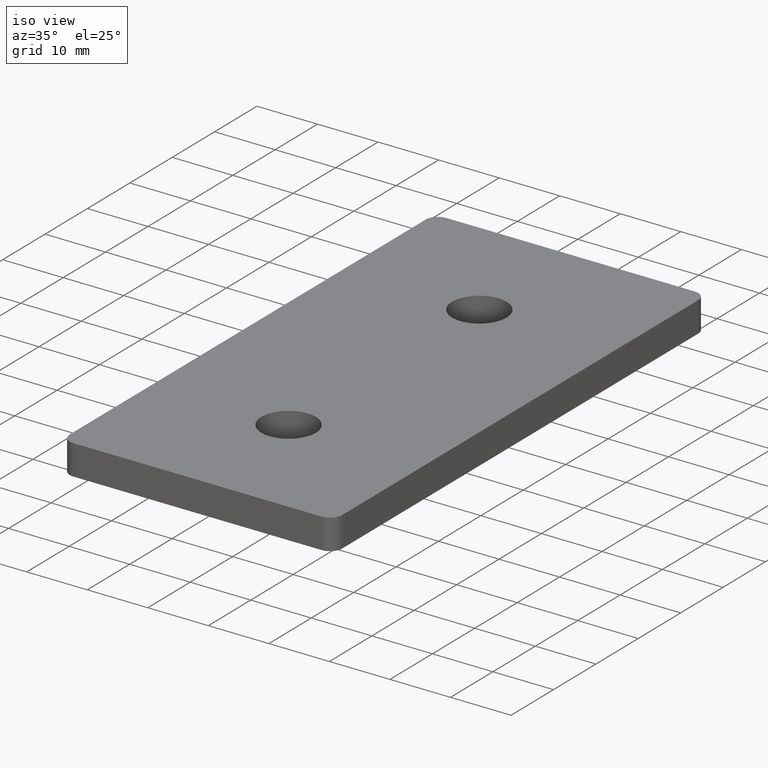
[diagram: clean part render]
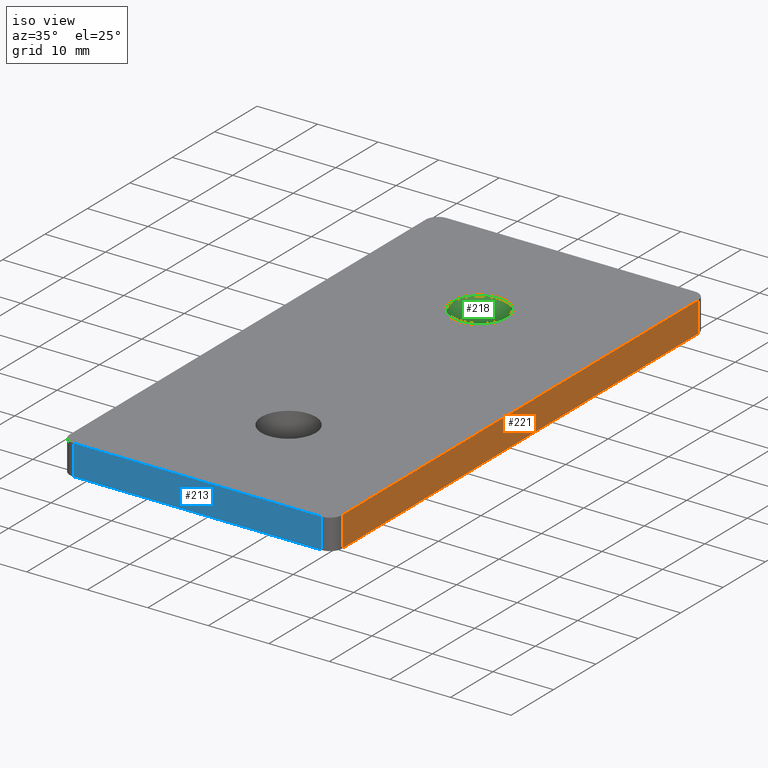
[diagram: same view with three faces highlighted in distinct colors, each labeled with its STEP entity id]
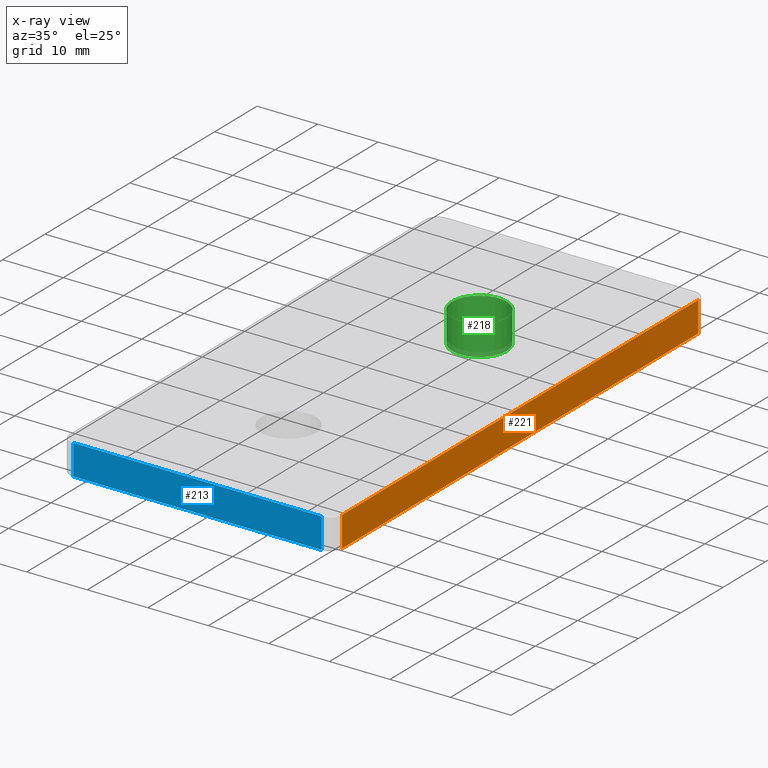
[diagram: x-ray of the same camera — body ghosted, the three highlighted faces saturated]
A machine part, iso view with three faces highlighted in distinct colors.
The next image is the same camera in x-ray (body ghosted, the three faces saturated) — at least one of them is partly hidden behind the body in this view.
Their STEP definitions:

[orange] entity #221 — the highlighted planar face has unit normal (1, 0, 0).
#25=PLANE('',#247);
#37=FACE_OUTER_BOUND('',#53,.T.);
#53=EDGE_LOOP('',(#191,#192,#193,#194));
#58=LINE('',#324,#74);
#62=LINE('',#338,#78);
#66=LINE('',#355,#82);
#72=LINE('',#374,#88);
#74=VECTOR('',#258,5.);
#78=VECTOR('',#270,84.);
#82=VECTOR('',#288,5.);
#88=VECTOR('',#312,84.);
#101=VERTEX_POINT('',#317);
#104=VERTEX_POINT('',#322);
#110=VERTEX_POINT('',#336);
#116=VERTEX_POINT('',#353);
#124=EDGE_CURVE('',#104,#101,#58,.T.);
#131=EDGE_CURVE('',#110,#104,#62,.T.);
#139=EDGE_CURVE('',#116,#110,#66,.T.);
#148=EDGE_CURVE('',#116,#101,#72,.T.);
#191=ORIENTED_EDGE('',*,*,#124,.F.);
#192=ORIENTED_EDGE('',*,*,#131,.F.);
#193=ORIENTED_EDGE('',*,*,#139,.F.);
#194=ORIENTED_EDGE('',*,*,#148,.T.);
#221=ADVANCED_FACE('',(#37),#25,.T.);
#247=AXIS2_PLACEMENT_3D('',#373,#310,#311);
#258=DIRECTION('',(0.,0.,1.));
#270=DIRECTION('',(0.,-1.,0.));
#288=DIRECTION('',(0.,0.,-1.));
#310=DIRECTION('center_axis',(1.,0.,0.));
#311=DIRECTION('ref_axis',(0.,0.,-1.));
#312=DIRECTION('',(0.,-1.,0.));
#317=CARTESIAN_POINT('',(22.5,-42.,5.));
#322=CARTESIAN_POINT('',(22.5,-42.,0.));
#324=CARTESIAN_POINT('',(22.5,-42.,0.));
#336=CARTESIAN_POINT('',(22.5,42.,0.));
#338=CARTESIAN_POINT('',(22.5,44.,0.));
#353=CARTESIAN_POINT('',(22.5,42.,5.));
#355=CARTESIAN_POINT('',(22.5,42.,0.));
#373=CARTESIAN_POINT('Origin',(22.5,44.,0.));
#374=CARTESIAN_POINT('',(22.5,44.,5.));

[blue] entity #213 — the highlighted planar face has unit normal (0, -1, 0).
#22=PLANE('',#234);
#29=FACE_OUTER_BOUND('',#43,.T.);
#43=EDGE_LOOP('',(#163,#164,#165,#166));
#57=LINE('',#321,#73);
#59=LINE('',#327,#75);
#63=LINE('',#345,#79);
#64=LINE('',#346,#80);
#73=VECTOR('',#255,5.);
#75=VECTOR('',#261,41.);
#79=VECTOR('',#277,41.);
#80=VECTOR('',#278,5.);
#102=VERTEX_POINT('',#318);
#103=VERTEX_POINT('',#320);
#105=VERTEX_POINT('',#326);
#113=VERTEX_POINT('',#344);
#122=EDGE_CURVE('',#102,#103,#57,.T.);
#125=EDGE_CURVE('',#103,#105,#59,.T.);
#134=EDGE_CURVE('',#102,#113,#63,.T.);
#135=EDGE_CURVE('',#105,#113,#64,.T.);
#163=ORIENTED_EDGE('',*,*,#122,.F.);
#164=ORIENTED_EDGE('',*,*,#134,.T.);
#165=ORIENTED_EDGE('',*,*,#135,.F.);
#166=ORIENTED_EDGE('',*,*,#125,.F.);
#213=ADVANCED_FACE('',(#29),#22,.T.);
#234=AXIS2_PLACEMENT_3D('',#343,#275,#276);
#255=DIRECTION('',(0.,0.,-1.));
#261=DIRECTION('',(-1.,0.,0.));
#275=DIRECTION('center_axis',(0.,-1.,0.));
#276=DIRECTION('ref_axis',(0.,0.,-1.));
#277=DIRECTION('',(-1.,0.,0.));
#278=DIRECTION('',(0.,0.,1.));
#318=CARTESIAN_POINT('',(20.5,-44.,5.));
#320=CARTESIAN_POINT('',(20.5,-44.,0.));
#321=CARTESIAN_POINT('',(20.5,-44.,0.));
#326=CARTESIAN_POINT('',(-20.5,-44.,0.));
#327=CARTESIAN_POINT('',(22.5,-44.,0.));
#343=CARTESIAN_POINT('Origin',(22.5,-44.,0.));
#344=CARTESIAN_POINT('',(-20.5,-44.,5.));
#345=CARTESIAN_POINT('',(22.5,-44.,5.));
#346=CARTESIAN_POINT('',(-20.5,-44.,0.));

[green] entity #218 — the highlighted cylindrical surface (bore or boss wall) has radius 4.5 mm, axis along (0, 0, 1).
#17=FACE_BOUND('',#49,.T.);
#34=FACE_OUTER_BOUND('',#48,.T.);
#48=EDGE_LOOP('',(#183));
#49=EDGE_LOOP('',(#184));
#94=CIRCLE('',#232,4.5);
#99=CIRCLE('',#243,4.5);
#111=VERTEX_POINT('',#339);
#119=VERTEX_POINT('',#366);
#132=EDGE_CURVE('',#111,#111,#94,.T.);
#145=EDGE_CURVE('',#119,#119,#99,.T.);
#183=ORIENTED_EDGE('',*,*,#132,.F.);
#184=ORIENTED_EDGE('',*,*,#145,.F.);
#209=CYLINDRICAL_SURFACE('',#242,4.5);
#218=ADVANCED_FACE('',(#34,#17),#209,.F.);
#232=AXIS2_PLACEMENT_3D('',#340,#271,#272);
#242=AXIS2_PLACEMENT_3D('',#365,#299,#300);
#243=AXIS2_PLACEMENT_3D('',#367,#301,#302);
#271=DIRECTION('center_axis',(0.,0.,1.));
#272=DIRECTION('ref_axis',(1.,0.,0.));
#299=DIRECTION('center_axis',(0.,0.,1.));
#300=DIRECTION('ref_axis',(1.,0.,0.));
#301=DIRECTION('center_axis',(0.,0.,-1.));
#302=DIRECTION('ref_axis',(1.,0.,0.));
#339=CARTESIAN_POINT('',(-4.5,22.5,0.));
#340=CARTESIAN_POINT('Origin',(0.,22.5,0.));
#365=CARTESIAN_POINT('Origin',(0.,22.5,-93.9646401499041));
#366=CARTESIAN_POINT('',(4.5,22.5,5.));
#367=CARTESIAN_POINT('Origin',(0.,22.5,5.));